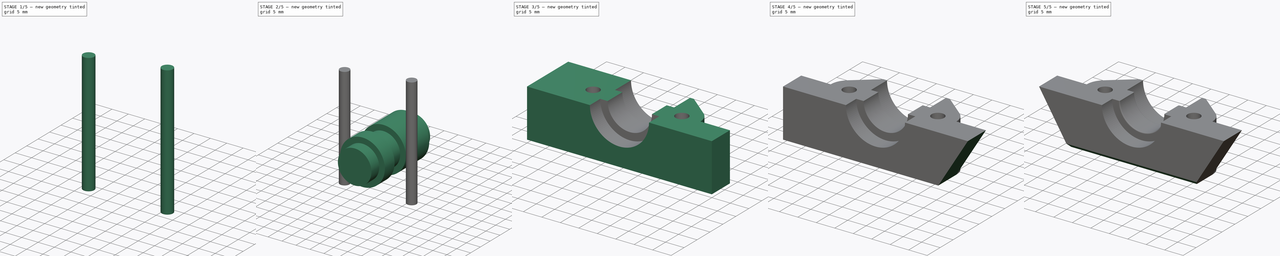
[diagram: build sequence overview — one tinted view per stage of 5, left to right]
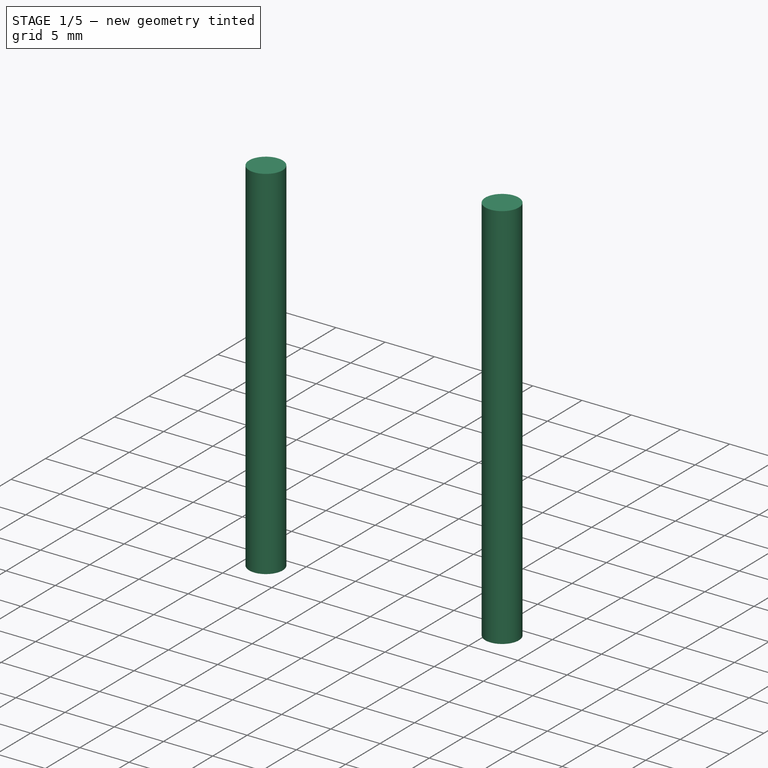
[diagram: stage 1 of 5 — iso view after this stage's code; geometry added in this stage tinted green]
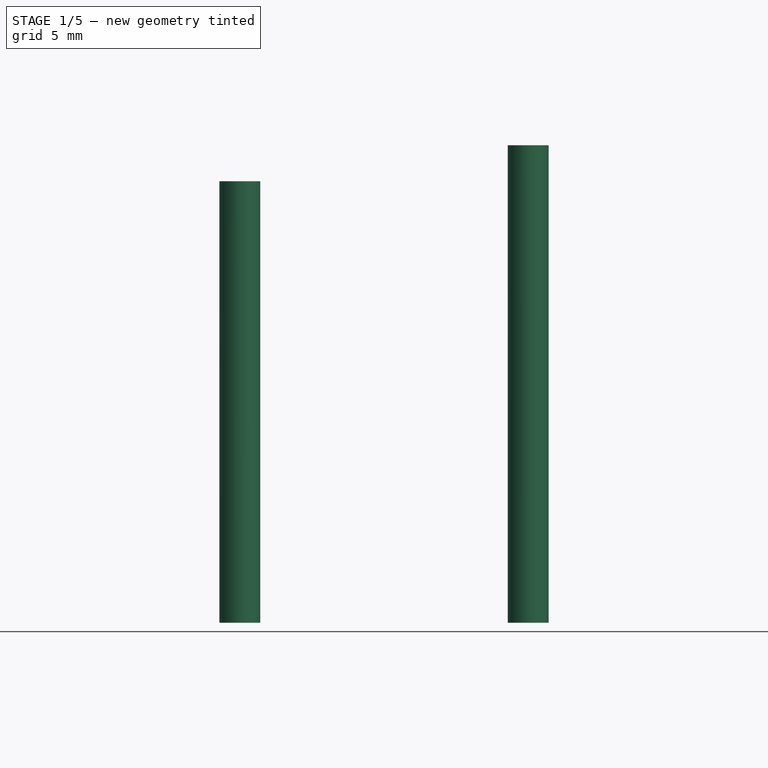
[diagram: stage 1 of 5 — front view after this stage's code; geometry added in this stage tinted green]
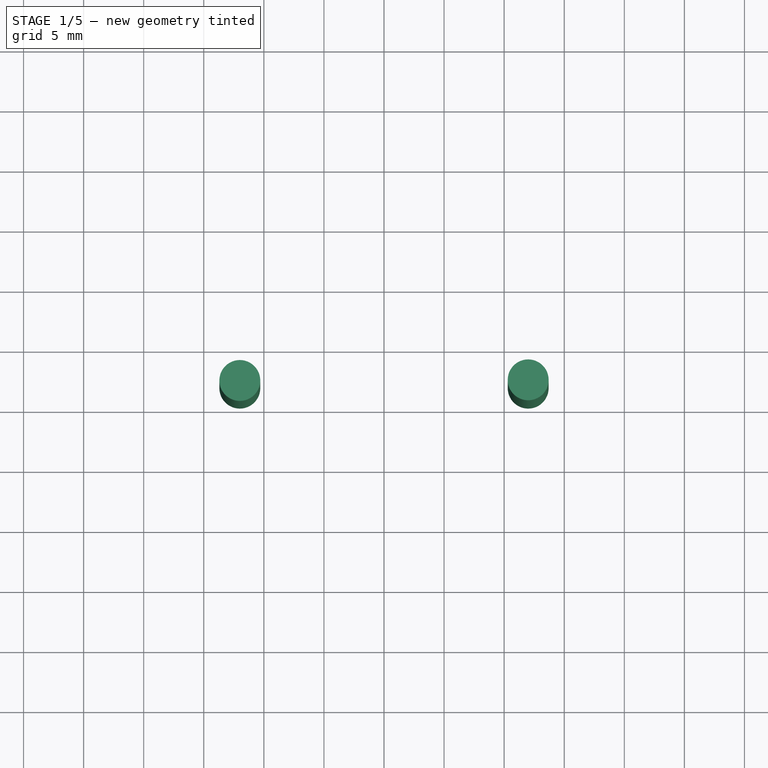
[diagram: stage 1 of 5 — top view after this stage's code; geometry added in this stage tinted green]
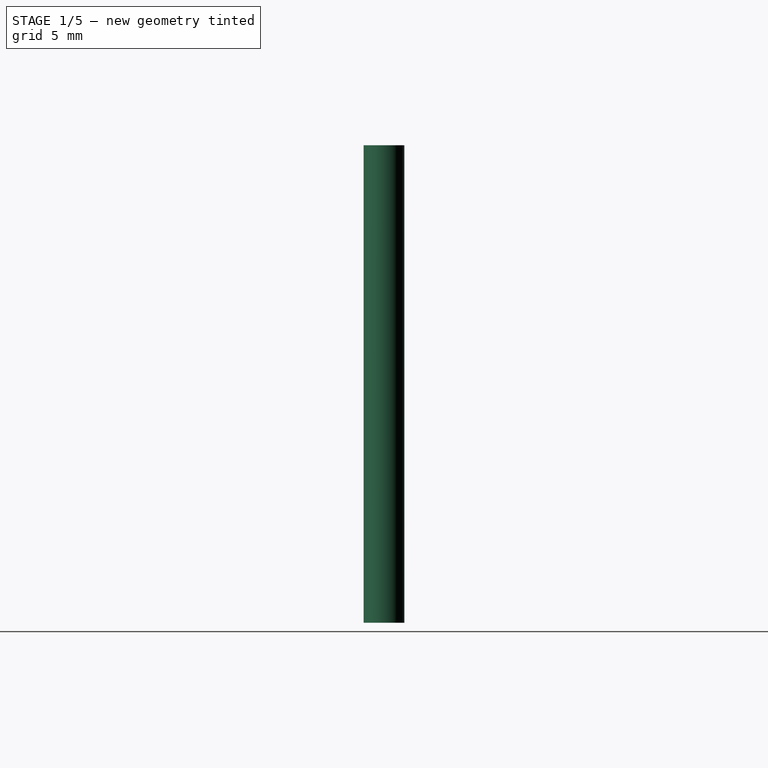
[diagram: stage 1 of 5 — right view after this stage's code; geometry added in this stage tinted green]
FCSTD DOCUMENT  (FreeCAD 0.16R6707 (Git))
Label: e3d_lalita_cierre
License: CreativeCommons Attribution-NonCommercial-ShareAlike
LicenseURL: http://creativecommons.org/licenses/by-nc-sa/4.0/
objects: Part::Cylinder×7, PartDesign::Chamfer×3, Part::MultiFuse×2, Part::Cut×2, Sketcher::SketchObject×2, PartDesign::Pocket×2, PartDesign::Mirrored×2, PartDesign::Fillet×2, Part::Box×1
note: 25 computed .brp shape members not serialized (recipe doc carries the construction recipe); baked Part::Feature solids carry a one-line shape summary decoded from their .brp

FEATURE [Part::Cylinder] Cylinder003  label="Cilindro003"
  Angle = 360
  Height = 39.75
  Placement = pos=(12,7,0) rot=(0,0,1;0rad)
  Radius = 1.7
FEATURE [Part::Cylinder] Cylinder004  label="Cilindro004"
  Angle = 360
  Height = 36.75
  Placement = pos=(-12,7,0) rot=(0,0,1;0rad)
  Radius = 1.7
FEATURE [Part::Cylinder] Cylinder005  label="Cilindro005"
  Angle = 360
  Height = 20
  Placement = pos=(-12,7,11) rot=(0,0,1;0rad)
  Radius = 1.7
FEATURE [Part::Cylinder] Cylinder006  label="Cilindro006"
  Angle = 360
  Height = 20
  Placement = pos=(12,7,11) rot=(0,0,1;0rad)
  Radius = 1.7
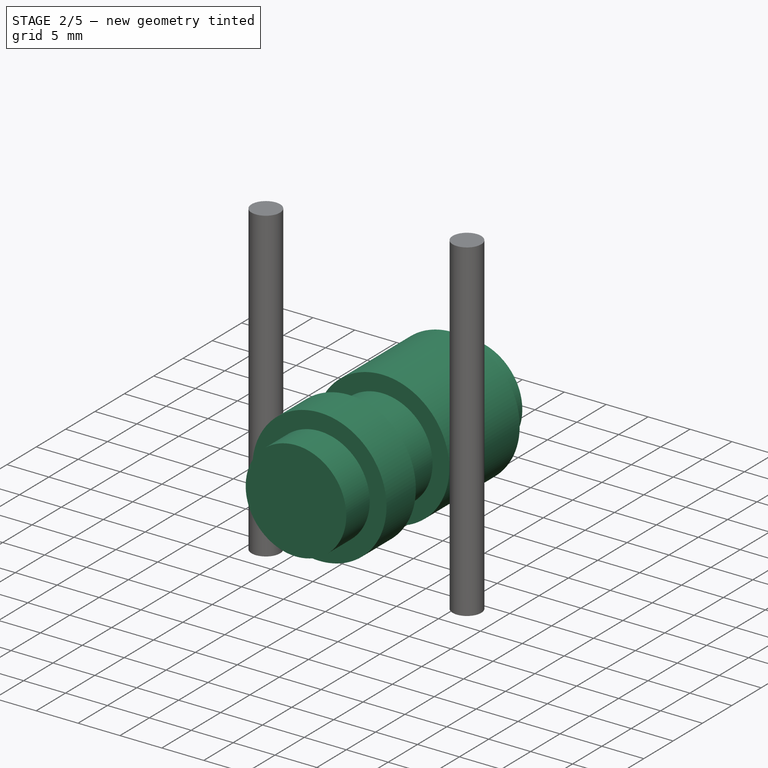
[diagram: stage 2 of 5 — iso view after this stage's code; geometry added in this stage tinted green]
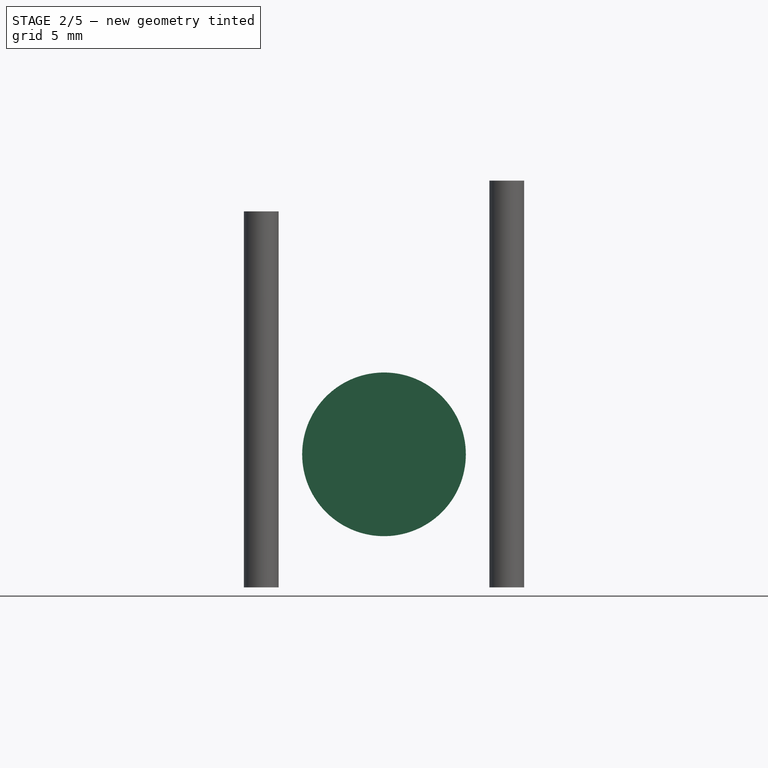
[diagram: stage 2 of 5 — front view after this stage's code; geometry added in this stage tinted green]
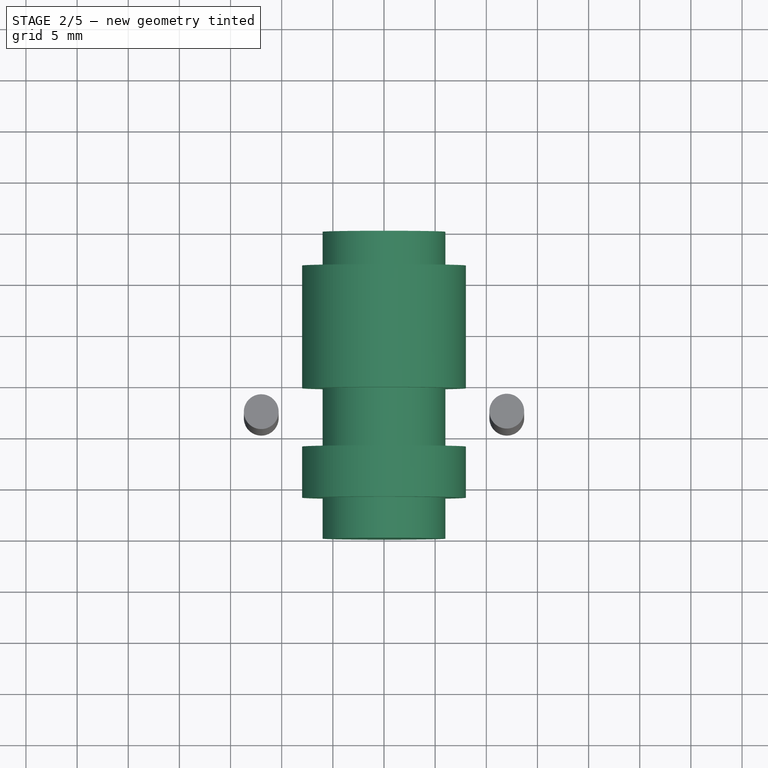
[diagram: stage 2 of 5 — top view after this stage's code; geometry added in this stage tinted green]
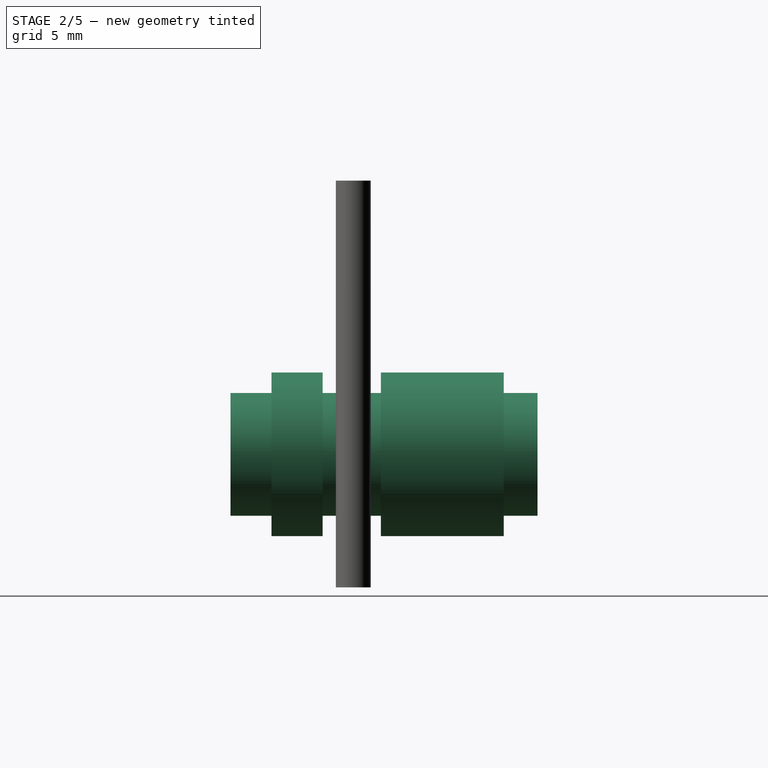
[diagram: stage 2 of 5 — right view after this stage's code; geometry added in this stage tinted green]
FEATURE [Part::Cylinder] Cylinder  label="Cilindro"
  Angle = 360
  Height = 30
  Placement = pos=(0,-5,13) rot=(-1,0,0;1.5708rad)
  Radius = 6
FEATURE [Part::Cylinder] Cylinder001  label="Cilindro001"
  Angle = 360
  Height = 5
  Placement = pos=(0,-1,13) rot=(-1,0,0;1.5708rad)
  Radius = 8
FEATURE [Part::Cylinder] Cylinder002  label="Cilindro002"
  Angle = 360
  Height = 12
  Placement = pos=(0,9.7,13) rot=(-1,0,0;1.5708rad)
  Radius = 8
FEATURE [Part::MultiFuse] Fusion001  label="tornillos"
  Shapes = -> [Cylinder006,Cylinder005,Cylinder004,Cylinder003]
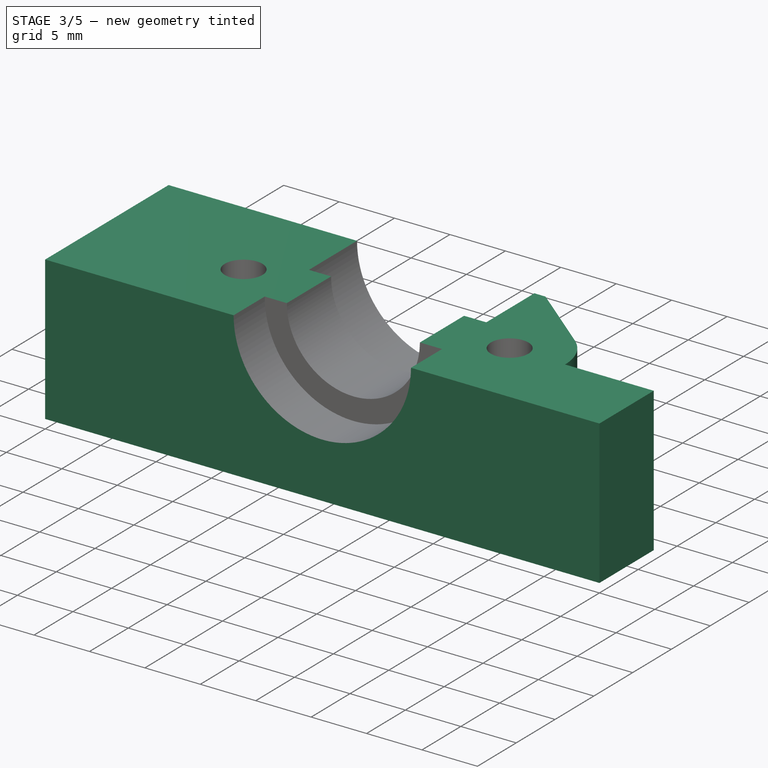
[diagram: stage 3 of 5 — iso view after this stage's code; geometry added in this stage tinted green]
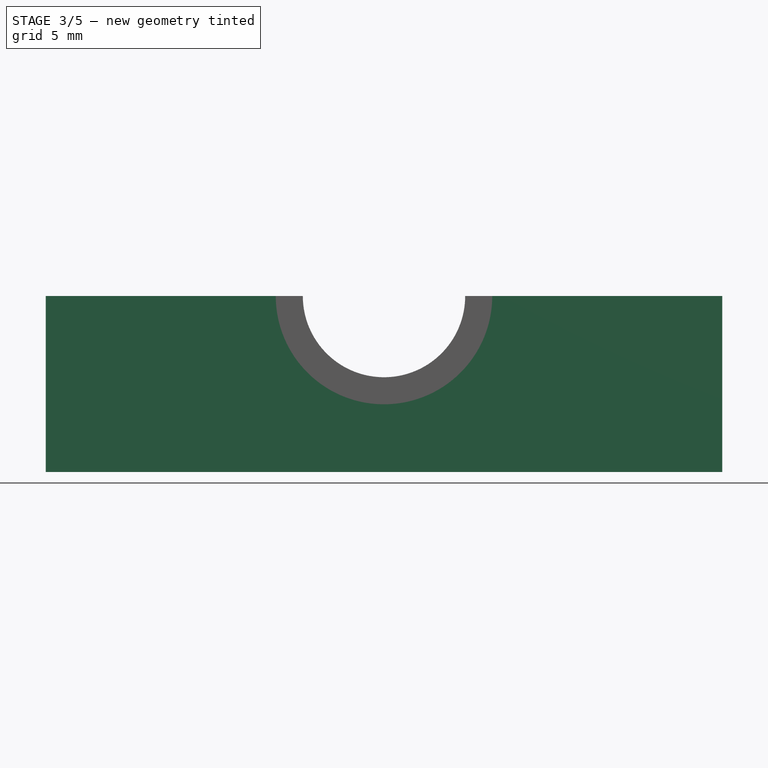
[diagram: stage 3 of 5 — front view after this stage's code; geometry added in this stage tinted green]
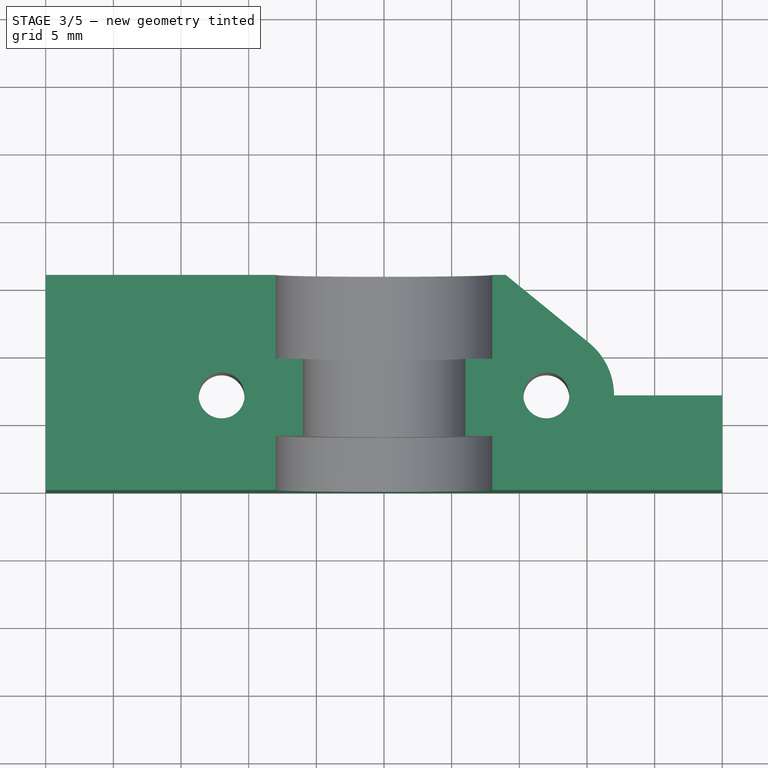
[diagram: stage 3 of 5 — top view after this stage's code; geometry added in this stage tinted green]
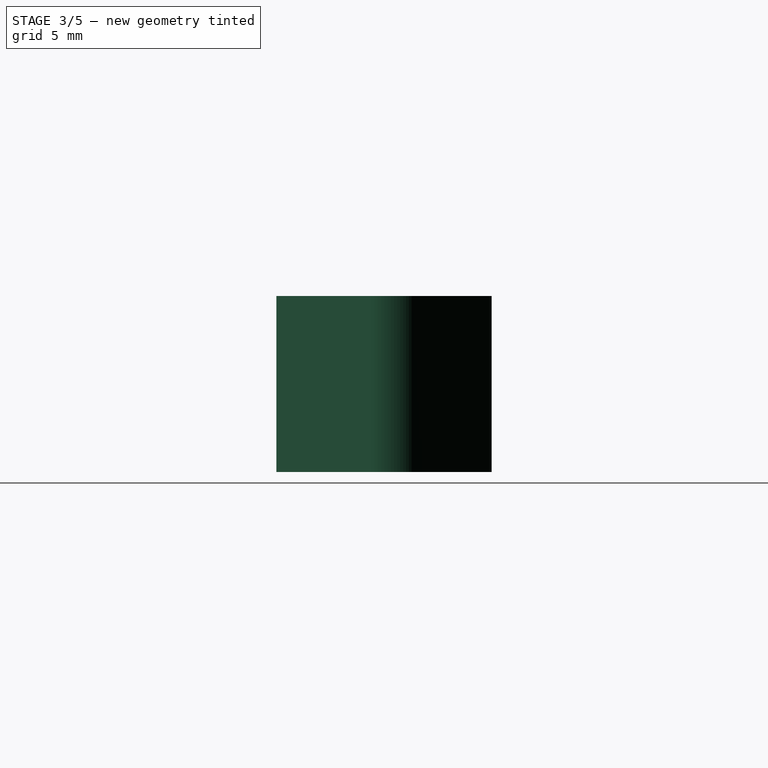
[diagram: stage 3 of 5 — right view after this stage's code; geometry added in this stage tinted green]
FEATURE [Part::Box] Box  label="Cubo"
  Height = 13
  Length = 50
  Placement = pos=(-25,0,0) rot=(0,0,1;0rad)
  Width = 15.9
FEATURE [Part::MultiFuse] Fusion  label="cabeza_hot_end"
  Shapes = -> [Cylinder002,Cylinder001,Cylinder]
FEATURE [Part::Cut] Cut
  Base = -> Box
  Tool = -> Fusion
FEATURE [Part::Cut] Cut001
  Base = -> Cut
  Tool = -> Fusion001
FEATURE [Sketcher::SketchObject] Sketch
  ExternalGeometry = -> [Cut001]
  Placement = pos=(0,0,13) rot=(0,0,1;0rad)
  Support = -> Cut001 [Face7]
  sketch-geometry (5):
    g0: ArcOfCircle CenterX=12 CenterY=7 CenterZ=0 NormalX=0 NormalY=0 NormalZ=1 Radius=5 StartAngle=0 EndAngle=0.886512
    g1: LineSegment StartX=25 StartY=7 StartZ=0 EndX=25 EndY=15.9 EndZ=0
    g2: LineSegment StartX=25 StartY=15.9 StartZ=0 EndX=9 EndY=15.9 EndZ=0
    g3: LineSegment StartX=9 StartY=15.9 StartZ=0 EndX=15.1606 EndY=10.8744 EndZ=0
    g4: LineSegment StartX=17 StartY=7 StartZ=0 EndX=25 EndY=7 EndZ=0
  constraints (14):
    c: Coincident(g0,g-3)
    c: Radius(g0) = 5
    c: Vertical(g1)
    c: Coincident(g1,g2)
    c: Coincident(g2,g3)
    c: Coincident(g3,g0)
    c: Tangent(g3,g0)
    c: DistanceX(g-5,g2) = 1
    c: PointOnObject(g2,g-5)
    c: Coincident(g4,g0)
    c: Coincident(g4,g1)
    c: Horizontal(g4)
    c: Coincident(g1,g-5)
    c: Perpendicular(g0,g4)
FEATURE [PartDesign::Pocket] Pocket
  Length = 5
  Sketch = -> Sketch
  Type = 1
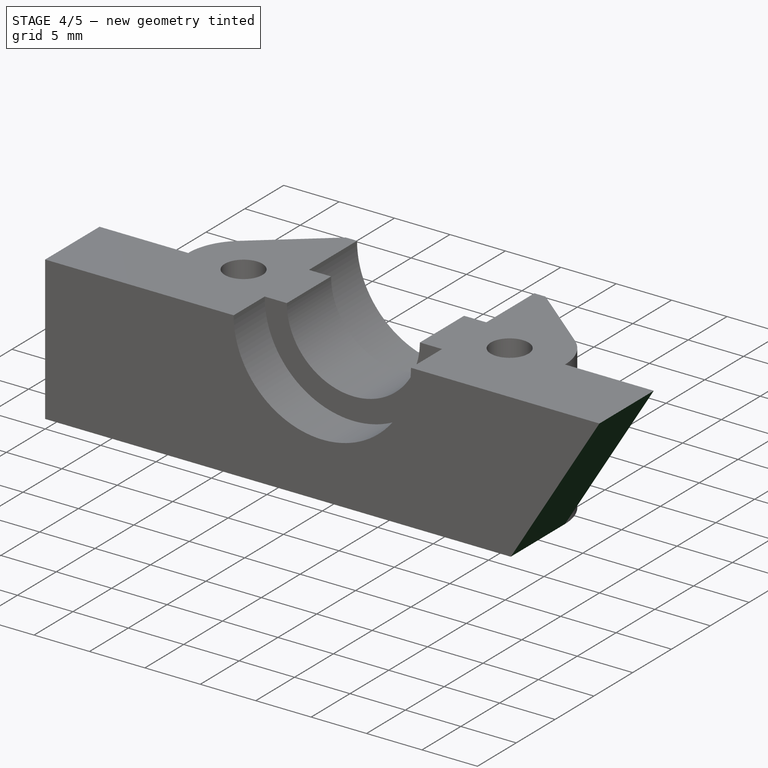
[diagram: stage 4 of 5 — iso view after this stage's code; geometry added in this stage tinted green]
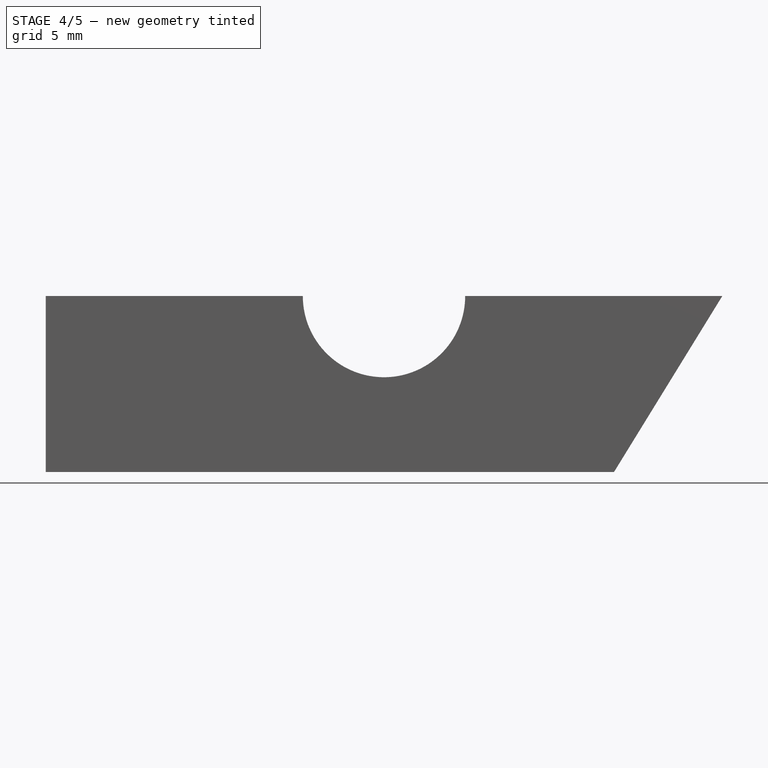
[diagram: stage 4 of 5 — front view after this stage's code; geometry added in this stage tinted green]
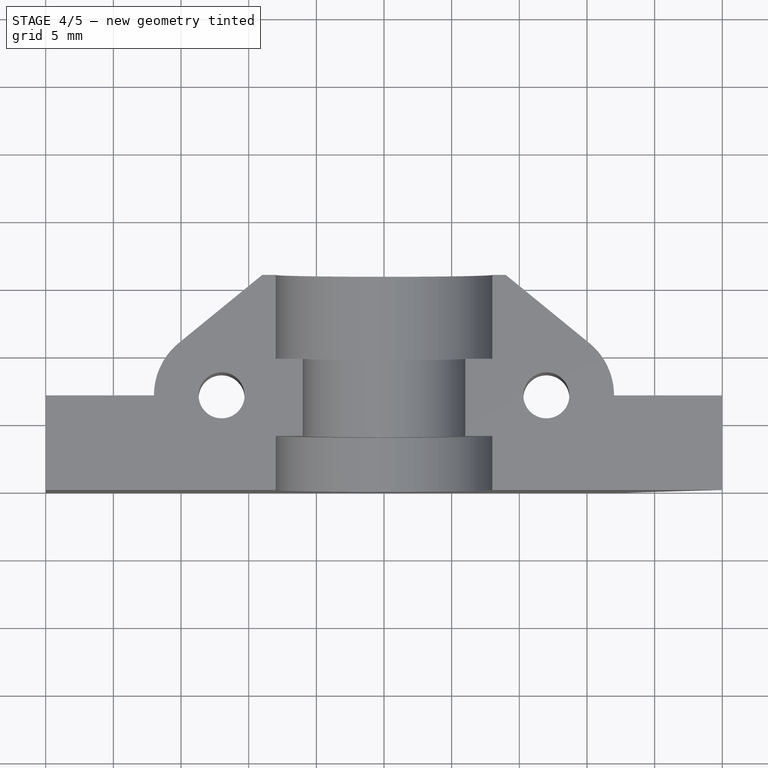
[diagram: stage 4 of 5 — top view after this stage's code; geometry added in this stage tinted green]
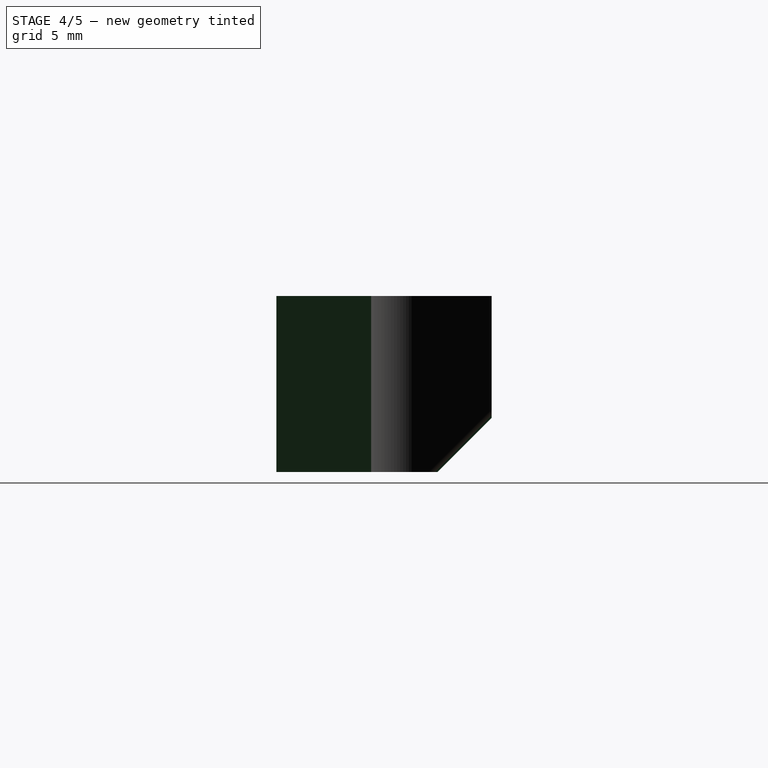
[diagram: stage 4 of 5 — right view after this stage's code; geometry added in this stage tinted green]
FEATURE [PartDesign::Mirrored] Mirrored
  MirrorPlane = -> Sketch [V_Axis]
  Originals = -> [Pocket]
FEATURE [PartDesign::Chamfer] Chamfer
  Base = -> Mirrored [Edge18]
  Size = 4
FEATURE [PartDesign::Fillet] Fillet
  Base = -> Chamfer [Edge13,Edge17]
  Radius = 1
FEATURE [Sketcher::SketchObject] Sketch002
  ExternalGeometry = -> [Fillet]
  Placement = pos=(0,7,0) rot=(0,0.707107,0.707107;3.14159rad)
  Support = -> Fillet [Face6]
  sketch-geometry (3):
    g0: LineSegment StartX=-25 StartY=13 StartZ=0 EndX=-17 EndY=0 EndZ=0
    g1: LineSegment StartX=-25 StartY=13 StartZ=0 EndX=-25 EndY=0 EndZ=0
    g2: LineSegment StartX=-25 StartY=0 StartZ=0 EndX=-17 EndY=0 EndZ=0
  constraints (7):
    c: Coincident(g1,g0)
    c: Vertical(g1)
    c: Coincident(g2,g1)
    c: Coincident(g2,g0)
    c: Horizontal(g2)
    c: Coincident(g0,g-3)
    c: Coincident(g0,g-4)
FEATURE [PartDesign::Pocket] Pocket001
  Length = 5
  Sketch = -> Sketch002
  Type = 1
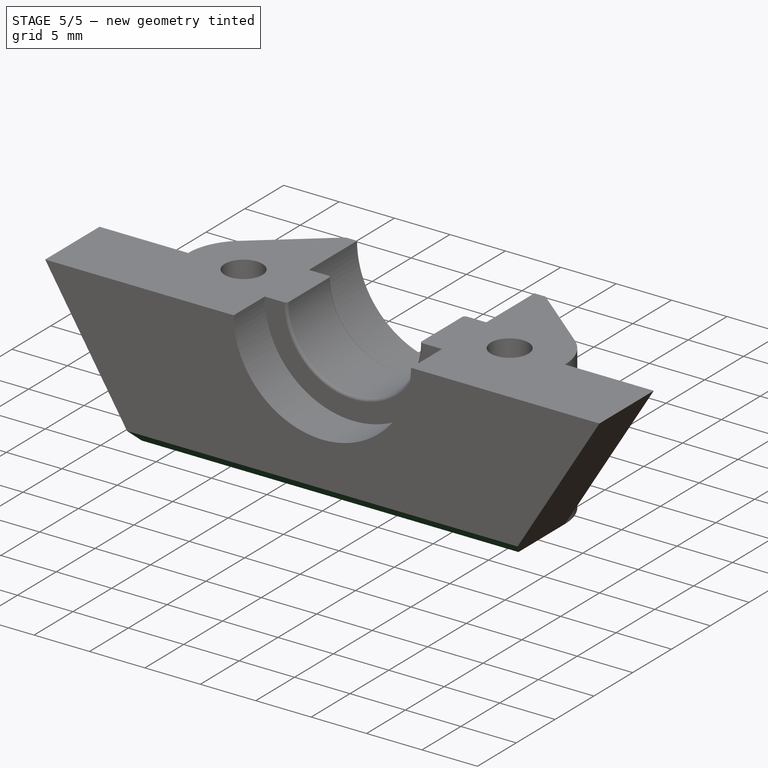
[diagram: stage 5 of 5 — iso view after this stage's code; geometry added in this stage tinted green]
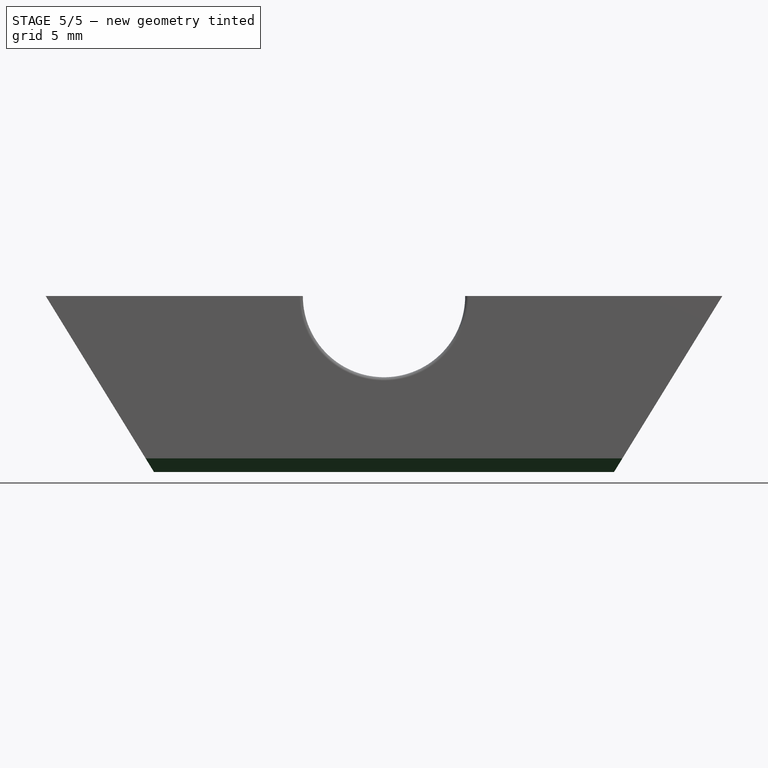
[diagram: stage 5 of 5 — front view after this stage's code; geometry added in this stage tinted green]
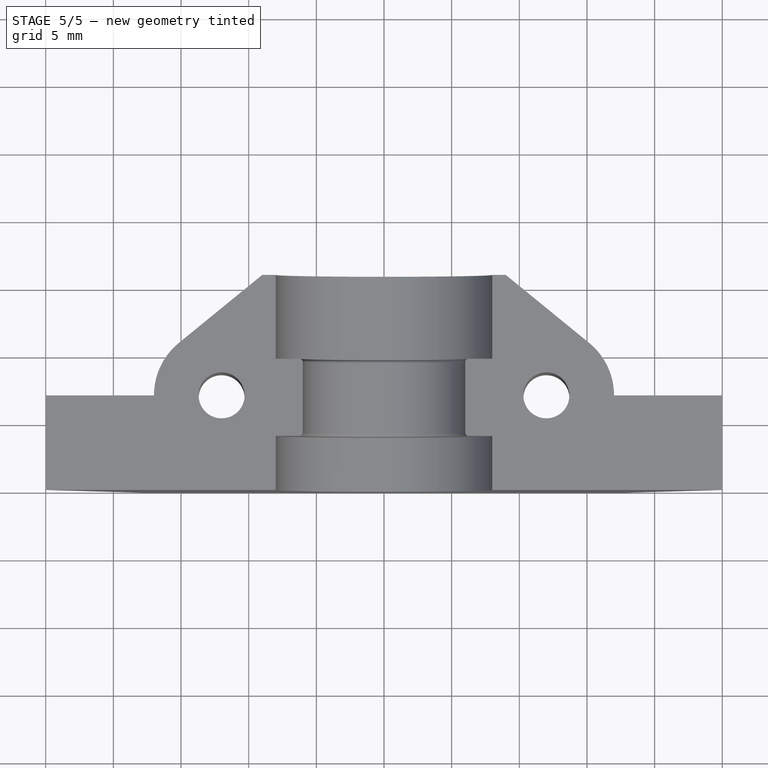
[diagram: stage 5 of 5 — top view after this stage's code; geometry added in this stage tinted green]
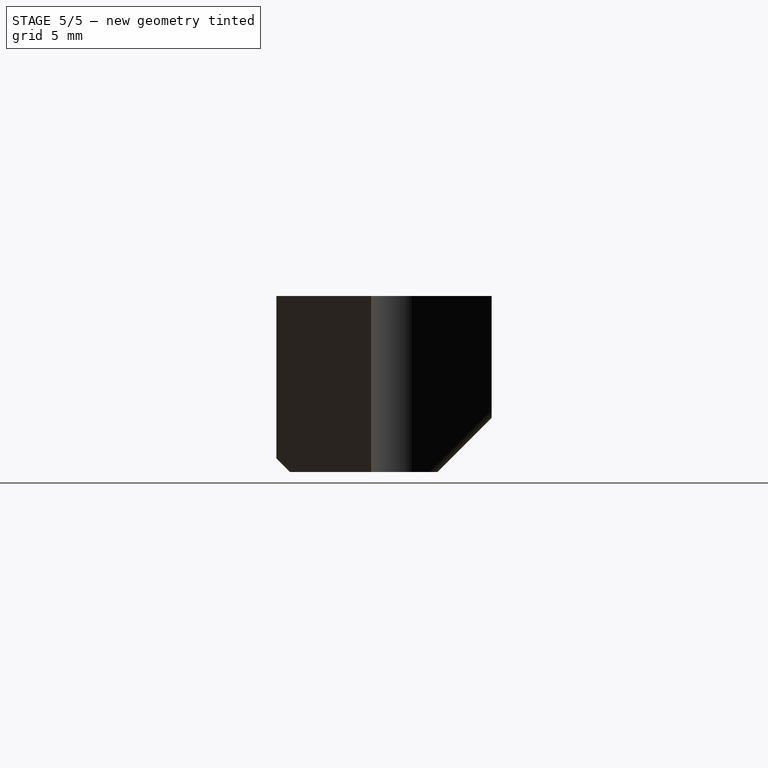
[diagram: stage 5 of 5 — right view after this stage's code; geometry added in this stage tinted green]
FEATURE [PartDesign::Mirrored] Mirrored001
  MirrorPlane = -> Sketch002 [V_Axis]
  Originals = -> [Pocket001]
FEATURE [PartDesign::Chamfer] Chamfer001
  Base = -> Mirrored001 [Edge4]
  Size = 1
FEATURE [PartDesign::Chamfer] Chamfer002
  Base = -> Chamfer001 [Edge11,Edge12]
  Size = 0.5
FEATURE [PartDesign::Fillet] Fillet001
  Base = -> Chamfer002 [Edge67,Edge68]
  Radius = 0.25
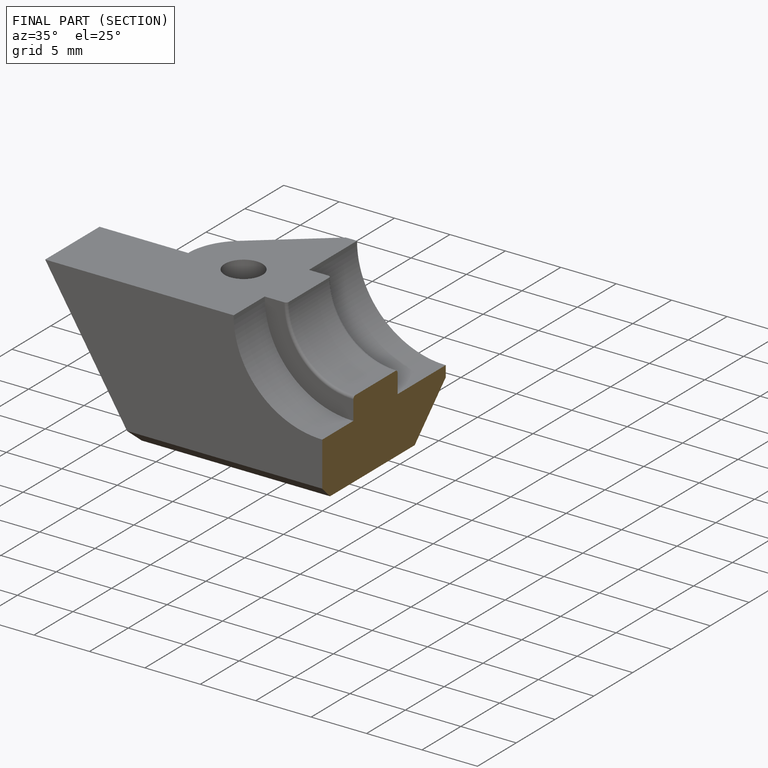
[diagram: finished part — half-section view (interior)]
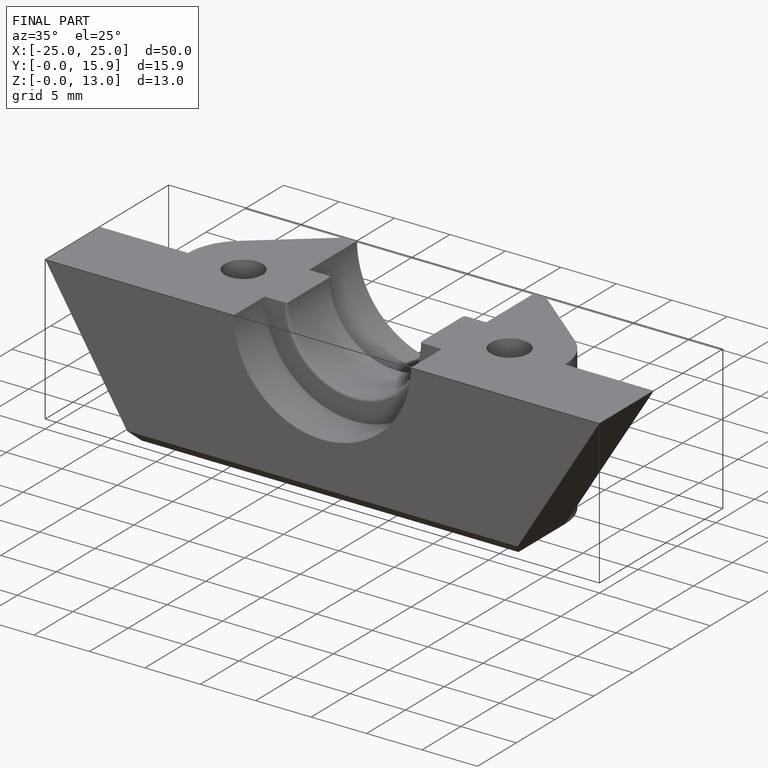
[diagram: finished part — iso view with bounding-box wireframe]
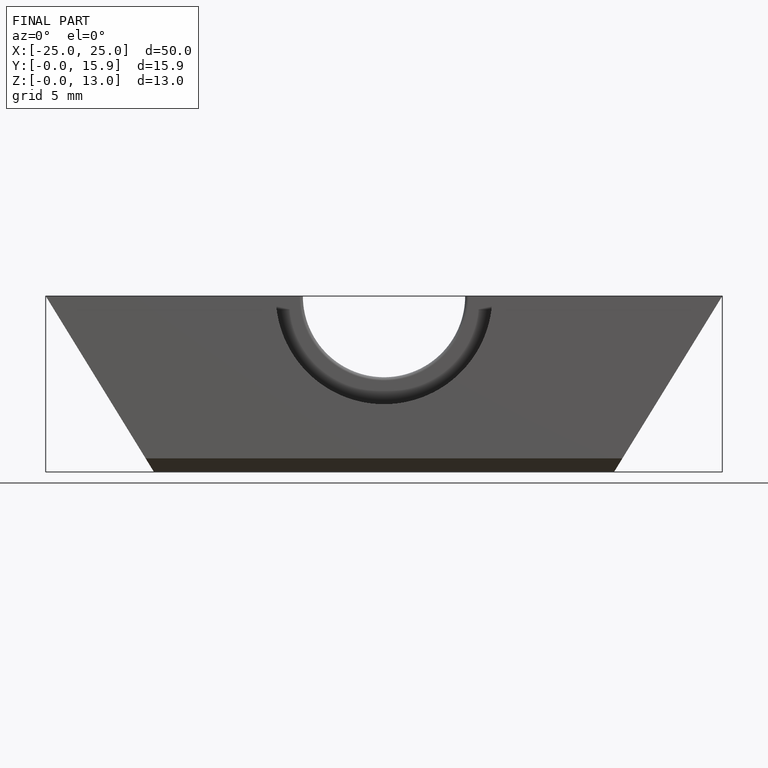
[diagram: finished part — front view with bounding-box wireframe]
